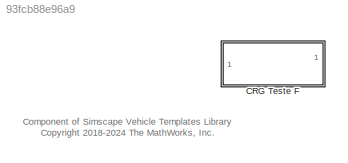
MODEL slx_93fcb88e96a9
KIND library
CONFIG AbsTol = auto
CONFIG EnableMultiTasking = off
CONFIG FixedStep = auto
CONFIG MaxStep = auto
CONFIG MinStep = auto
CONFIG RelTol = 1e-3
CONFIG SampleTimeConstraint = Unconstrained
CONFIG SolverName = VariableStepAuto
CONFIG StartTime = 0.0
CONFIG StopTime = 10.0
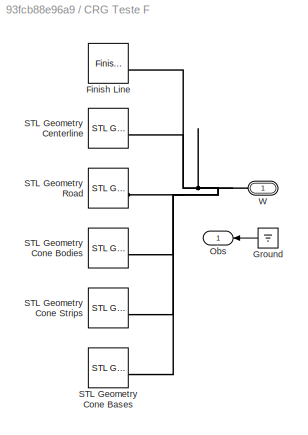
BLOCK [SubSystem] CRG Teste F
BLOCK [Reference] CRG Teste F/Finish Line  REF=Scene_Utilities/Finish Line
  SourceBlock = Scene_Utilities/Finish Line
BLOCK [Ground] CRG Teste F/Ground
  NameLocation = top
BLOCK [Outport] CRG Teste F/Obs
  VectorParamsAs1DForOutWhenUnconnected = off
BLOCK [Reference] CRG Teste F/STL Geometry Centerline  REF=Scene_Utilities/STL Geometry
  SourceBlock = Scene_Utilities/STL Geometry
BLOCK [Reference] CRG Teste F/STL Geometry Cone Bases  REF=Scene_Utilities/STL Geometry
  SourceBlock = Scene_Utilities/STL Geometry
BLOCK [Reference] CRG Teste F/STL Geometry Cone Bodies  REF=Scene_Utilities/STL Geometry
  SourceBlock = Scene_Utilities/STL Geometry
BLOCK [Reference] CRG Teste F/STL Geometry Cone Strips  REF=Scene_Utilities/STL Geometry
  SourceBlock = Scene_Utilities/STL Geometry
BLOCK [Reference] CRG Teste F/STL Geometry Road  REF=Scene_Utilities/STL Geometry
  SourceBlock = Scene_Utilities/STL Geometry
BLOCK [PMIOPort] CRG Teste F/W
  NameLocation = top
  Side = Left
ANNOTATION (root): Component of Simscape Vehicle Templates Library <copyright redacted>
LINE CRG Teste F/Ground:1 -> CRG Teste F/Obs:1
PNET net1: CRG Teste F/Finish Line:LConn1 -- CRG Teste F/STL Geometry Centerline:RConn1 -- CRG Teste F/STL Geometry Cone Bases:RConn1 -- CRG Teste F/STL Geometry Cone Bodies:RConn1 -- CRG Teste F/STL Geometry Cone Strips:RConn1 -- CRG Teste F/STL Geometry Road:RConn1 -- CRG Teste F/W:RConn1
note: PNET lines group multi-terminal physical nets as a canonical sorted terminal list (undirected conserving connections); 2-terminal nets keep the pairwise PLINE form
